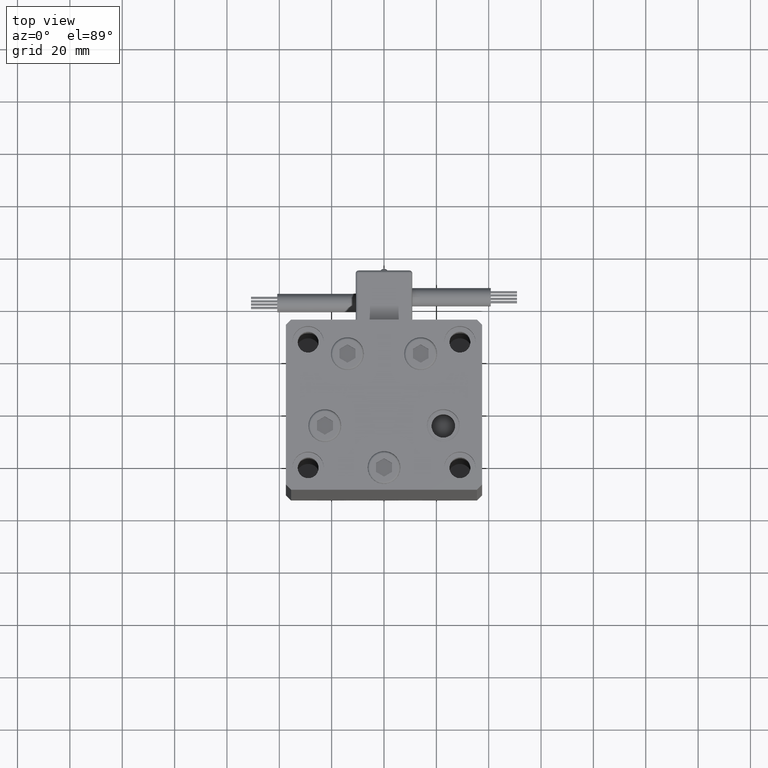
[diagram: clean part render]
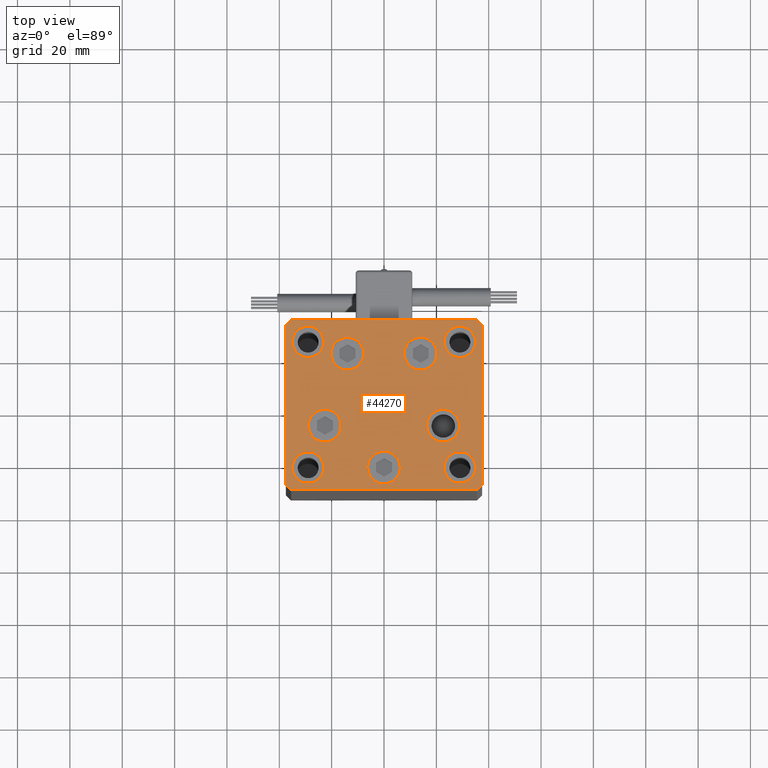
[diagram: same view with one face highlighted and labeled with its STEP entity id]
A machine part, top view. The second image highlights one B-rep face of the part: STEP entity #44270.
In plain terms, the highlighted planar face has unit normal (0, 0, 1).
Its self-contained STEP definition (entity closure, byte-faithful):
#607 = CARTESIAN_POINT ( 'NONE',  ( 2.939152317953647500E-15, -24.00000000000000000, 0.000000000000000000 ) ) ;
#659 = DIRECTION ( 'NONE',  ( 0.7071067811865474617, -0.7071067811865474617, 0.000000000000000000 ) ) ;
#919 = CARTESIAN_POINT ( 'NONE',  ( -37.49999999999998579, -30.50000000000001421, 0.000000000000000000 ) ) ;
#1415 = DIRECTION ( 'NONE',  ( 1.000000000000000000, 0.000000000000000000, 0.000000000000000000 ) ) ;
#1660 = DIRECTION ( 'NONE',  ( 1.000000000000000000, 0.000000000000000000, 0.000000000000000000 ) ) ;
#1667 = ORIENTED_EDGE ( 'NONE', *, *, #14091, .T. ) ;
#1719 = AXIS2_PLACEMENT_3D ( 'NONE', #45202, #50476, #33812 ) ;
#1858 = CIRCLE ( 'NONE', #11185, 6.250000000000000000 ) ;
#1863 = DIRECTION ( 'NONE',  ( 0.000000000000000000, 0.000000000000000000, 1.000000000000000000 ) ) ;
#1932 = FACE_BOUND ( 'NONE', #24070, .T. ) ;
#1961 = CIRCLE ( 'NONE', #5347, 5.999999999999998224 ) ;
#2228 = DIRECTION ( 'NONE',  ( 0.000000000000000000, 0.000000000000000000, 1.000000000000000000 ) ) ;
#2321 = VECTOR ( 'NONE', #25322, 1000.000000000000000 ) ;
#2366 = CIRCLE ( 'NONE', #46306, 6.000000000000005329 ) ;
#2396 = CARTESIAN_POINT ( 'NONE',  ( 37.50000000000001421, -30.50000000000000711, 0.000000000000000000 ) ) ;
#2746 = AXIS2_PLACEMENT_3D ( 'NONE', #29937, #1863, #46039 ) ;
#3432 = DIRECTION ( 'NONE',  ( 1.000000000000000000, 9.773090005503140331E-17, 0.000000000000000000 ) ) ;
#3497 = CARTESIAN_POINT ( 'NONE',  ( -7.741068579633227031, 19.49999999999999645, 0.000000000000000000 ) ) ;
#3539 = CARTESIAN_POINT ( 'NONE',  ( -20.24106857963322881, 19.49999999999999645, 0.000000000000000000 ) ) ;
#3553 = CIRCLE ( 'NONE', #31485, 6.250000000000001776 ) ;
#3905 = EDGE_CURVE ( 'NONE', #28031, #18382, #1961, .T. ) ;
#3936 = EDGE_LOOP ( 'NONE', ( #4215, #26510, #42360, #26568, #14905, #33798, #15071, #1667 ) ) ;
#4033 = CARTESIAN_POINT ( 'NONE',  ( -23.00000000000001421, -23.99999999999999289, 0.000000000000000000 ) ) ;
#4188 = EDGE_LOOP ( 'NONE', ( #52239, #45702 ) ) ;
#4215 = ORIENTED_EDGE ( 'NONE', *, *, #12036, .T. ) ;
#4769 = CARTESIAN_POINT ( 'NONE',  ( -35.00000000000000711, -23.99999999999999289, 0.000000000000000000 ) ) ;
#4829 = DIRECTION ( 'NONE',  ( 1.000000000000000000, 0.000000000000000000, 0.000000000000000000 ) ) ;
#5347 = AXIS2_PLACEMENT_3D ( 'NONE', #13632, #38488, #30571 ) ;
#5660 = VERTEX_POINT ( 'NONE', #3539 ) ;
#5899 = CARTESIAN_POINT ( 'NONE',  ( -13.99106857963322703, 19.49999999999999645, 0.000000000000000000 ) ) ;
#6041 = DIRECTION ( 'NONE',  ( 4.550094363217855288E-16, -1.000000000000000000, 0.000000000000000000 ) ) ;
#6097 = DIRECTION ( 'NONE',  ( 1.000000000000000000, 0.000000000000000000, 0.000000000000000000 ) ) ;
#6123 = EDGE_CURVE ( 'NONE', #40124, #50578, #37369, .T. ) ;
#6800 = CIRCLE ( 'NONE', #1719, 6.250000000000000000 ) ;
#6997 = VECTOR ( 'NONE', #35034, 1000.000000000000000 ) ;
#7039 = EDGE_CURVE ( 'NONE', #21493, #24261, #18900, .T. ) ;
#7096 = CARTESIAN_POINT ( 'NONE',  ( -37.49999999999998579, -30.50000000000001421, 0.000000000000000000 ) ) ;
#7266 = VERTEX_POINT ( 'NONE', #31467 ) ;
#7743 = DIRECTION ( 'NONE',  ( -1.000000000000000000, -1.954618001100629052E-16, 0.000000000000000000 ) ) ;
#8343 = AXIS2_PLACEMENT_3D ( 'NONE', #19276, #12111, #32750 ) ;
#8371 = CARTESIAN_POINT ( 'NONE',  ( -35.50000000000002842, 32.49999999999999289, 0.000000000000000000 ) ) ;
#8765 = VERTEX_POINT ( 'NONE', #27120 ) ;
#8854 = LINE ( 'NONE', #919, #28730 ) ;
#8909 = LINE ( 'NONE', #8371, #2321 ) ;
#9079 = PLANE ( 'NONE',  #44782 ) ;
#9489 = CARTESIAN_POINT ( 'NONE',  ( 29.00000000000001066, 24.00000000000000711, 0.000000000000000000 ) ) ;
#9604 = FACE_BOUND ( 'NONE', #50651, .T. ) ;
#9921 = VERTEX_POINT ( 'NONE', #47275 ) ;
#10132 = AXIS2_PLACEMENT_3D ( 'NONE', #30457, #14560, #6097 ) ;
#10275 = CARTESIAN_POINT ( 'NONE',  ( 35.00000000000001421, 24.00000000000000711, 0.000000000000000000 ) ) ;
#10571 = ORIENTED_EDGE ( 'NONE', *, *, #12530, .F. ) ;
#10730 = VECTOR ( 'NONE', #30728, 1000.000000000000000 ) ;
#11002 = CIRCLE ( 'NONE', #41443, 5.999999999999998224 ) ;
#11076 = VECTOR ( 'NONE', #6041, 1000.000000000000000 ) ;
#11185 = AXIS2_PLACEMENT_3D ( 'NONE', #5899, #46892, #1415 ) ;
#11546 = ORIENTED_EDGE ( 'NONE', *, *, #51427, .T. ) ;
#11873 = CARTESIAN_POINT ( 'NONE',  ( 13.99106857963322348, 19.50000000000000000, 0.000000000000000000 ) ) ;
#12036 = EDGE_CURVE ( 'NONE', #33037, #27727, #8854, .T. ) ;
#12111 = DIRECTION ( 'NONE',  ( 0.000000000000000000, 0.000000000000000000, 1.000000000000000000 ) ) ;
#12241 = DIRECTION ( 'NONE',  ( 0.000000000000000000, -0.000000000000000000, -1.000000000000000000 ) ) ;
#12414 = AXIS2_PLACEMENT_3D ( 'NONE', #42927, #29746, #30015 ) ;
#12526 = EDGE_CURVE ( 'NONE', #18382, #28031, #34643, .T. ) ;
#12530 = EDGE_CURVE ( 'NONE', #30542, #49500, #39695, .T. ) ;
#12862 = EDGE_CURVE ( 'NONE', #5660, #36366, #6800, .T. ) ;
#12935 = VECTOR ( 'NONE', #7743, 1000.000000000000000 ) ;
#13041 = CARTESIAN_POINT ( 'NONE',  ( 22.62741699796951877, -8.000000000000000000, 0.000000000000000000 ) ) ;
#13209 = DIRECTION ( 'NONE',  ( 0.000000000000000000, 0.000000000000000000, 1.000000000000000000 ) ) ;
#13426 = CIRCLE ( 'NONE', #42994, 6.250000000000001776 ) ;
#13576 = DIRECTION ( 'NONE',  ( -0.000000000000000000, 0.000000000000000000, 1.000000000000000000 ) ) ;
#13632 = CARTESIAN_POINT ( 'NONE',  ( -29.00000000000001066, -23.99999999999999289, 0.000000000000000000 ) ) ;
#13737 = VERTEX_POINT ( 'NONE', #27277 ) ;
#14091 = EDGE_CURVE ( 'NONE', #23607, #33037, #38058, .T. ) ;
#14477 = ORIENTED_EDGE ( 'NONE', *, *, #3905, .F. ) ;
#14560 = DIRECTION ( 'NONE',  ( 0.000000000000000000, 0.000000000000000000, 1.000000000000000000 ) ) ;
#14905 = ORIENTED_EDGE ( 'NONE', *, *, #25004, .T. ) ;
#15071 = ORIENTED_EDGE ( 'NONE', *, *, #32237, .T. ) ;
#15414 = ORIENTED_EDGE ( 'NONE', *, *, #41725, .F. ) ;
#15661 = ORIENTED_EDGE ( 'NONE', *, *, #37651, .T. ) ;
#16623 = VERTEX_POINT ( 'NONE', #43016 ) ;
#16869 = ORIENTED_EDGE ( 'NONE', *, *, #17282, .T. ) ;
#16998 = CARTESIAN_POINT ( 'NONE',  ( -35.49999999999998579, -32.50000000000001421, 0.000000000000000000 ) ) ;
#17127 = EDGE_CURVE ( 'NONE', #39042, #52016, #21329, .T. ) ;
#17282 = EDGE_CURVE ( 'NONE', #29996, #16623, #3553, .T. ) ;
#17286 = FACE_BOUND ( 'NONE', #19790, .T. ) ;
#18216 = DIRECTION ( 'NONE',  ( 1.000000000000000000, 0.000000000000000000, 0.000000000000000000 ) ) ;
#18264 = CARTESIAN_POINT ( 'NONE',  ( 29.00000000000001066, -23.99999999999999289, 0.000000000000000000 ) ) ;
#18296 = EDGE_CURVE ( 'NONE', #34695, #8765, #41630, .T. ) ;
#18325 = EDGE_CURVE ( 'NONE', #13737, #7266, #36067, .T. ) ;
#18382 = VERTEX_POINT ( 'NONE', #4033 ) ;
#18822 = AXIS2_PLACEMENT_3D ( 'NONE', #607, #23646, #24163 ) ;
#18863 = CARTESIAN_POINT ( 'NONE',  ( 13.99106857963322348, 19.50000000000000000, 0.000000000000000000 ) ) ;
#18900 = LINE ( 'NONE', #19406, #6997 ) ;
#18936 = AXIS2_PLACEMENT_3D ( 'NONE', #35003, #43192, #32068 ) ;
#19027 = CARTESIAN_POINT ( 'NONE',  ( 16.37741699796951877, -8.000000000000000000, 0.000000000000000000 ) ) ;
#19276 = CARTESIAN_POINT ( 'NONE',  ( 29.00000000000001066, -23.99999999999999289, 0.000000000000000000 ) ) ;
#19327 = CARTESIAN_POINT ( 'NONE',  ( -35.49999999999998579, -32.50000000000001421, 0.000000000000000000 ) ) ;
#19370 = CARTESIAN_POINT ( 'NONE',  ( 37.49999999999992184, 30.50000000000001066, 0.000000000000000000 ) ) ;
#19406 = CARTESIAN_POINT ( 'NONE',  ( 35.50000000000000711, -32.50000000000000711, 0.000000000000000000 ) ) ;
#19625 = CARTESIAN_POINT ( 'NONE',  ( 20.24106857963322526, 19.50000000000000000, 0.000000000000000000 ) ) ;
#19790 = EDGE_LOOP ( 'NONE', ( #10571, #22951 ) ) ;
#20178 = CARTESIAN_POINT ( 'NONE',  ( 35.49999999999992184, 32.50000000000000711, 0.000000000000000000 ) ) ;
#20289 = EDGE_CURVE ( 'NONE', #36366, #5660, #1858, .T. ) ;
#20379 = CARTESIAN_POINT ( 'NONE',  ( 35.00000000000001421, -23.99999999999999289, 0.000000000000000000 ) ) ;
#20437 = CARTESIAN_POINT ( 'NONE',  ( -22.62741699796951877, -8.000000000000005329, 0.000000000000000000 ) ) ;
#20581 = ORIENTED_EDGE ( 'NONE', *, *, #48559, .T. ) ;
#20887 = CIRCLE ( 'NONE', #12414, 6.250000000000000000 ) ;
#21085 = VERTEX_POINT ( 'NONE', #30472 ) ;
#21259 = CARTESIAN_POINT ( 'NONE',  ( 0.000000000000000000, 0.000000000000000000, 0.000000000000000000 ) ) ;
#21329 = CIRCLE ( 'NONE', #50887, 6.250000000000001776 ) ;
#21493 = VERTEX_POINT ( 'NONE', #49338 ) ;
#21524 = FACE_BOUND ( 'NONE', #29792, .T. ) ;
#22251 = DIRECTION ( 'NONE',  ( 1.000000000000000000, 0.000000000000000000, 0.000000000000000000 ) ) ;
#22754 = ORIENTED_EDGE ( 'NONE', *, *, #12526, .F. ) ;
#22951 = ORIENTED_EDGE ( 'NONE', *, *, #37835, .F. ) ;
#23153 = EDGE_LOOP ( 'NONE', ( #22754, #14477 ) ) ;
#23607 = VERTEX_POINT ( 'NONE', #37660 ) ;
#23640 = DIRECTION ( 'NONE',  ( 1.000000000000000000, 0.000000000000000000, 0.000000000000000000 ) ) ;
#23646 = DIRECTION ( 'NONE',  ( 0.000000000000000000, -0.000000000000000000, -1.000000000000000000 ) ) ;
#24070 = EDGE_LOOP ( 'NONE', ( #16869, #11546 ) ) ;
#24163 = DIRECTION ( 'NONE',  ( 1.000000000000000000, 0.000000000000000000, 0.000000000000000000 ) ) ;
#24261 = VERTEX_POINT ( 'NONE', #48949 ) ;
#24518 = ORIENTED_EDGE ( 'NONE', *, *, #12862, .T. ) ;
#24933 = ORIENTED_EDGE ( 'NONE', *, *, #35898, .F. ) ;
#25004 = EDGE_CURVE ( 'NONE', #9921, #13737, #51379, .T. ) ;
#25322 = DIRECTION ( 'NONE',  ( -0.7071067811865426878, -0.7071067811865524577, 0.000000000000000000 ) ) ;
#25360 = ORIENTED_EDGE ( 'NONE', *, *, #35339, .T. ) ;
#26025 = FACE_BOUND ( 'NONE', #23153, .T. ) ;
#26187 = CARTESIAN_POINT ( 'NONE',  ( -22.62741699796951877, -8.000000000000005329, 0.000000000000000000 ) ) ;
#26510 = ORIENTED_EDGE ( 'NONE', *, *, #42213, .T. ) ;
#26568 = ORIENTED_EDGE ( 'NONE', *, *, #31812, .T. ) ;
#27082 = CARTESIAN_POINT ( 'NONE',  ( 23.00000000000001066, -23.99999999999999289, 0.000000000000000000 ) ) ;
#27109 = CIRCLE ( 'NONE', #42307, 6.000000000000005329 ) ;
#27120 = CARTESIAN_POINT ( 'NONE',  ( 6.250000000000002665, -24.00000000000000000, 0.000000000000000000 ) ) ;
#27277 = CARTESIAN_POINT ( 'NONE',  ( 35.49999999999992184, 32.50000000000000711, 0.000000000000000000 ) ) ;
#27727 = VERTEX_POINT ( 'NONE', #16998 ) ;
#27971 = VECTOR ( 'NONE', #3432, 1000.000000000000000 ) ;
#28031 = VERTEX_POINT ( 'NONE', #4769 ) ;
#28730 = VECTOR ( 'NONE', #659, 1000.000000000000114 ) ;
#28945 = EDGE_LOOP ( 'NONE', ( #15661, #30784 ) ) ;
#29189 = DIRECTION ( 'NONE',  ( 0.000000000000000000, -0.000000000000000000, -1.000000000000000000 ) ) ;
#29746 = DIRECTION ( 'NONE',  ( 0.000000000000000000, -0.000000000000000000, -1.000000000000000000 ) ) ;
#29773 = CARTESIAN_POINT ( 'NONE',  ( -23.00000000000001421, 24.00000000000000711, 0.000000000000000000 ) ) ;
#29792 = EDGE_LOOP ( 'NONE', ( #24933, #15414 ) ) ;
#29896 = CARTESIAN_POINT ( 'NONE',  ( -37.50000000000001421, 30.49999999999998579, 0.000000000000000000 ) ) ;
#29937 = CARTESIAN_POINT ( 'NONE',  ( -29.00000000000001066, 24.00000000000000711, 0.000000000000000000 ) ) ;
#29942 = DIRECTION ( 'NONE',  ( 0.000000000000000000, 0.000000000000000000, 1.000000000000000000 ) ) ;
#29996 = VERTEX_POINT ( 'NONE', #19027 ) ;
#30015 = DIRECTION ( 'NONE',  ( 1.000000000000000000, 0.000000000000000000, 0.000000000000000000 ) ) ;
#30457 = CARTESIAN_POINT ( 'NONE',  ( -29.00000000000001066, -23.99999999999999289, 0.000000000000000000 ) ) ;
#30472 = CARTESIAN_POINT ( 'NONE',  ( 7.741068579633223479, 19.50000000000000000, 0.000000000000000000 ) ) ;
#30542 = VERTEX_POINT ( 'NONE', #20379 ) ;
#30571 = DIRECTION ( 'NONE',  ( 1.000000000000000000, 0.000000000000000000, 0.000000000000000000 ) ) ;
#30728 = DIRECTION ( 'NONE',  ( -1.478780668045802821E-15, 1.000000000000000000, 0.000000000000000000 ) ) ;
#30784 = ORIENTED_EDGE ( 'NONE', *, *, #17127, .T. ) ;
#30808 = DIRECTION ( 'NONE',  ( 1.000000000000000000, 0.000000000000000000, 0.000000000000000000 ) ) ;
#31189 = CIRCLE ( 'NONE', #8343, 6.000000000000005329 ) ;
#31467 = CARTESIAN_POINT ( 'NONE',  ( -35.50000000000002842, 32.49999999999999289, 0.000000000000000000 ) ) ;
#31485 = AXIS2_PLACEMENT_3D ( 'NONE', #13041, #29189, #4829 ) ;
#31812 = EDGE_CURVE ( 'NONE', #24261, #9921, #35189, .T. ) ;
#32068 = DIRECTION ( 'NONE',  ( 1.000000000000000000, 0.000000000000000000, 0.000000000000000000 ) ) ;
#32237 = EDGE_CURVE ( 'NONE', #7266, #23607, #8909, .T. ) ;
#32591 = CARTESIAN_POINT ( 'NONE',  ( -29.00000000000001066, 24.00000000000000711, 0.000000000000000000 ) ) ;
#32750 = DIRECTION ( 'NONE',  ( 1.000000000000000000, 0.000000000000000000, 0.000000000000000000 ) ) ;
#33037 = VERTEX_POINT ( 'NONE', #7096 ) ;
#33168 = FACE_BOUND ( 'NONE', #50644, .T. ) ;
#33798 = ORIENTED_EDGE ( 'NONE', *, *, #18325, .T. ) ;
#33812 = DIRECTION ( 'NONE',  ( 1.000000000000000000, 0.000000000000000000, 0.000000000000000000 ) ) ;
#33970 = CARTESIAN_POINT ( 'NONE',  ( 23.00000000000001066, 24.00000000000000711, 0.000000000000000000 ) ) ;
#34643 = CIRCLE ( 'NONE', #10132, 5.999999999999998224 ) ;
#34695 = VERTEX_POINT ( 'NONE', #35245 ) ;
#34727 = VERTEX_POINT ( 'NONE', #19625 ) ;
#35000 = DIRECTION ( 'NONE',  ( 0.000000000000000000, -0.000000000000000000, -1.000000000000000000 ) ) ;
#35003 = CARTESIAN_POINT ( 'NONE',  ( 22.62741699796951877, -8.000000000000000000, 0.000000000000000000 ) ) ;
#35034 = DIRECTION ( 'NONE',  ( 0.7071067811865487940, 0.7071067811865463515, 0.000000000000000000 ) ) ;
#35189 = LINE ( 'NONE', #2396, #10730 ) ;
#35245 = CARTESIAN_POINT ( 'NONE',  ( -6.249999999999997335, -24.00000000000000000, 0.000000000000000000 ) ) ;
#35339 = EDGE_CURVE ( 'NONE', #8765, #34695, #20887, .T. ) ;
#35507 = DIRECTION ( 'NONE',  ( -0.7071067811865482389, 0.7071067811865469066, 0.000000000000000000 ) ) ;
#35711 = DIRECTION ( 'NONE',  ( 0.000000000000000000, -0.000000000000000000, -1.000000000000000000 ) ) ;
#35898 = EDGE_CURVE ( 'NONE', #49925, #45783, #2366, .T. ) ;
#36067 = LINE ( 'NONE', #20178, #12935 ) ;
#36366 = VERTEX_POINT ( 'NONE', #3497 ) ;
#37369 = CIRCLE ( 'NONE', #2746, 5.999999999999998224 ) ;
#37651 = EDGE_CURVE ( 'NONE', #52016, #39042, #13426, .T. ) ;
#37660 = CARTESIAN_POINT ( 'NONE',  ( -37.50000000000001421, 30.49999999999998579, 0.000000000000000000 ) ) ;
#37835 = EDGE_CURVE ( 'NONE', #49500, #30542, #31189, .T. ) ;
#38058 = LINE ( 'NONE', #29896, #11076 ) ;
#38137 = ORIENTED_EDGE ( 'NONE', *, *, #18296, .T. ) ;
#38488 = DIRECTION ( 'NONE',  ( 0.000000000000000000, 0.000000000000000000, 1.000000000000000000 ) ) ;
#39042 = VERTEX_POINT ( 'NONE', #48285 ) ;
#39682 = LINE ( 'NONE', #19327, #27971 ) ;
#39695 = CIRCLE ( 'NONE', #43931, 6.000000000000005329 ) ;
#40124 = VERTEX_POINT ( 'NONE', #42854 ) ;
#40775 = DIRECTION ( 'NONE',  ( 0.000000000000000000, 0.000000000000000000, 1.000000000000000000 ) ) ;
#40967 = ORIENTED_EDGE ( 'NONE', *, *, #20289, .T. ) ;
#41042 = DIRECTION ( 'NONE',  ( 1.000000000000000000, 0.000000000000000000, 0.000000000000000000 ) ) ;
#41099 = EDGE_CURVE ( 'NONE', #50578, #40124, #11002, .T. ) ;
#41443 = AXIS2_PLACEMENT_3D ( 'NONE', #32591, #40775, #41042 ) ;
#41630 = CIRCLE ( 'NONE', #18822, 6.250000000000000000 ) ;
#41725 = EDGE_CURVE ( 'NONE', #45783, #49925, #27109, .T. ) ;
#41788 = DIRECTION ( 'NONE',  ( 1.000000000000000000, 0.000000000000000000, 0.000000000000000000 ) ) ;
#42213 = EDGE_CURVE ( 'NONE', #27727, #21493, #39682, .T. ) ;
#42298 = DIRECTION ( 'NONE',  ( 0.000000000000000000, -0.000000000000000000, -1.000000000000000000 ) ) ;
#42307 = AXIS2_PLACEMENT_3D ( 'NONE', #50621, #2228, #30808 ) ;
#42360 = ORIENTED_EDGE ( 'NONE', *, *, #7039, .T. ) ;
#42395 = FACE_BOUND ( 'NONE', #46962, .T. ) ;
#42461 = CIRCLE ( 'NONE', #45812, 6.250000000000000000 ) ;
#42854 = CARTESIAN_POINT ( 'NONE',  ( -35.00000000000000711, 24.00000000000000711, 0.000000000000000000 ) ) ;
#42927 = CARTESIAN_POINT ( 'NONE',  ( 2.939152317953647500E-15, -24.00000000000000000, 0.000000000000000000 ) ) ;
#42994 = AXIS2_PLACEMENT_3D ( 'NONE', #26187, #42298, #41788 ) ;
#43016 = CARTESIAN_POINT ( 'NONE',  ( 28.87741699796952233, -8.000000000000000000, 0.000000000000000000 ) ) ;
#43192 = DIRECTION ( 'NONE',  ( 0.000000000000000000, -0.000000000000000000, -1.000000000000000000 ) ) ;
#43267 = CARTESIAN_POINT ( 'NONE',  ( -28.87741699796952233, -8.000000000000005329, 0.000000000000000000 ) ) ;
#43408 = CIRCLE ( 'NONE', #18936, 6.250000000000001776 ) ;
#43931 = AXIS2_PLACEMENT_3D ( 'NONE', #18264, #29942, #22251 ) ;
#43964 = DIRECTION ( 'NONE',  ( 1.000000000000000000, 0.000000000000000000, 0.000000000000000000 ) ) ;
#44141 = CIRCLE ( 'NONE', #46685, 6.250000000000000000 ) ;
#44270 = ADVANCED_FACE ( 'NONE', ( #9604, #33168, #1932, #42395, #45579, #17286, #26025, #49799, #21524, #45329 ), #9079, .T. ) ;
#44782 = AXIS2_PLACEMENT_3D ( 'NONE', #21259, #13576, #1660 ) ;
#45202 = CARTESIAN_POINT ( 'NONE',  ( -13.99106857963322703, 19.49999999999999645, 0.000000000000000000 ) ) ;
#45329 = FACE_OUTER_BOUND ( 'NONE', #3936, .T. ) ;
#45579 = FACE_BOUND ( 'NONE', #28945, .T. ) ;
#45702 = ORIENTED_EDGE ( 'NONE', *, *, #6123, .F. ) ;
#45783 = VERTEX_POINT ( 'NONE', #33970 ) ;
#45812 = AXIS2_PLACEMENT_3D ( 'NONE', #11873, #35711, #51843 ) ;
#46039 = DIRECTION ( 'NONE',  ( 1.000000000000000000, 0.000000000000000000, 0.000000000000000000 ) ) ;
#46306 = AXIS2_PLACEMENT_3D ( 'NONE', #9489, #13209, #18216 ) ;
#46685 = AXIS2_PLACEMENT_3D ( 'NONE', #18863, #35000, #43964 ) ;
#46892 = DIRECTION ( 'NONE',  ( 0.000000000000000000, -0.000000000000000000, -1.000000000000000000 ) ) ;
#46962 = EDGE_LOOP ( 'NONE', ( #38137, #25360 ) ) ;
#47275 = CARTESIAN_POINT ( 'NONE',  ( 37.49999999999992184, 30.50000000000001066, 0.000000000000000000 ) ) ;
#47695 = VECTOR ( 'NONE', #35507, 999.9999999999998863 ) ;
#48285 = CARTESIAN_POINT ( 'NONE',  ( -16.37741699796951877, -8.000000000000005329, 0.000000000000000000 ) ) ;
#48559 = EDGE_CURVE ( 'NONE', #34727, #21085, #44141, .T. ) ;
#48949 = CARTESIAN_POINT ( 'NONE',  ( 37.50000000000001421, -30.50000000000000711, 0.000000000000000000 ) ) ;
#49075 = EDGE_CURVE ( 'NONE', #21085, #34727, #42461, .T. ) ;
#49230 = ORIENTED_EDGE ( 'NONE', *, *, #49075, .T. ) ;
#49338 = CARTESIAN_POINT ( 'NONE',  ( 35.50000000000000711, -32.50000000000000711, 0.000000000000000000 ) ) ;
#49500 = VERTEX_POINT ( 'NONE', #27082 ) ;
#49799 = FACE_BOUND ( 'NONE', #4188, .T. ) ;
#49925 = VERTEX_POINT ( 'NONE', #10275 ) ;
#50476 = DIRECTION ( 'NONE',  ( 0.000000000000000000, -0.000000000000000000, -1.000000000000000000 ) ) ;
#50578 = VERTEX_POINT ( 'NONE', #29773 ) ;
#50621 = CARTESIAN_POINT ( 'NONE',  ( 29.00000000000001066, 24.00000000000000711, 0.000000000000000000 ) ) ;
#50644 = EDGE_LOOP ( 'NONE', ( #49230, #20581 ) ) ;
#50651 = EDGE_LOOP ( 'NONE', ( #24518, #40967 ) ) ;
#50887 = AXIS2_PLACEMENT_3D ( 'NONE', #20437, #12241, #23640 ) ;
#51379 = LINE ( 'NONE', #19370, #47695 ) ;
#51427 = EDGE_CURVE ( 'NONE', #16623, #29996, #43408, .T. ) ;
#51843 = DIRECTION ( 'NONE',  ( 1.000000000000000000, 0.000000000000000000, 0.000000000000000000 ) ) ;
#52016 = VERTEX_POINT ( 'NONE', #43267 ) ;
#52239 = ORIENTED_EDGE ( 'NONE', *, *, #41099, .F. ) ;